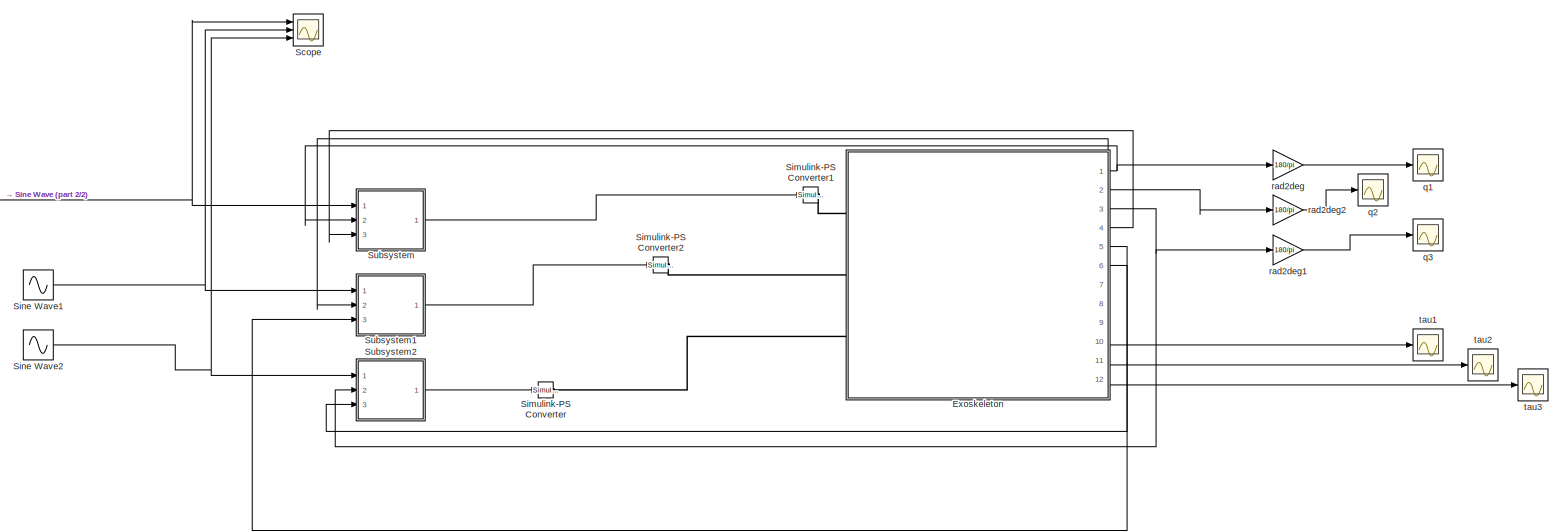
[diagram: root canvas - part 1/2, most of the canvas]
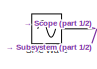
[diagram: root canvas - part 2/2, middle left region]
MODEL slx_8a791529891c
KIND model
CONFIG AbsTol = auto
CONFIG EnableMultiTasking = off
CONFIG FixedStep = auto
CONFIG MaxStep = auto
CONFIG MinStep = auto
CONFIG RelTol = 1e-3
CONFIG SampleTimeConstraint = Unconstrained
CONFIG SolverName = VariableStepAuto
CONFIG StartTime = 0.0
CONFIG StopTime = 10.0
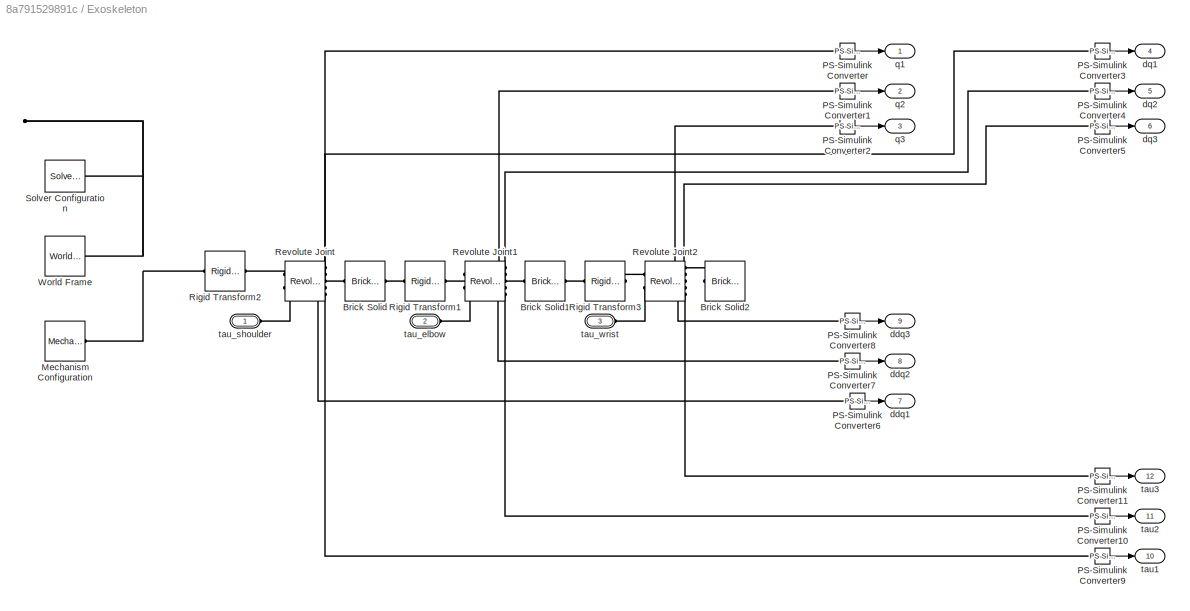
BLOCK [SubSystem] Exoskeleton
  Ports = [0, 12, 0, 0, 0, 3]
  RequestExecContextInheritance = off
BLOCK [Reference] Exoskeleton/Brick Solid  REF=sm_lib/Body Elements/Brick Solid
  Ports = [0, 0, 0, 0, 0, 1, 1]
  SourceBlock = sm_lib/Body Elements/Brick Solid
  SourceProductBaseCode = MS
  SourceType = Brick Solid
BLOCK [Reference] Exoskeleton/Brick Solid1  REF=sm_lib/Body Elements/Brick Solid
  Ports = [0, 0, 0, 0, 0, 1, 1]
  SourceBlock = sm_lib/Body Elements/Brick Solid
  SourceProductBaseCode = MS
  SourceType = Brick Solid
BLOCK [Reference] Exoskeleton/Brick Solid2  REF=sm_lib/Body Elements/Brick Solid
  Ports = [0, 0, 0, 0, 0, 1]
  SourceBlock = sm_lib/Body Elements/Brick Solid
  SourceProductBaseCode = MS
  SourceType = Brick Solid
BLOCK [Reference] Exoskeleton/Mechanism Configuration  REF=sm_lib/Utilities/Mechanism
Configuration
  Ports = [0, 0, 0, 0, 0, 0, 1]
  SourceBlock = sm_lib/Utilities/Mechanism\nConfiguration
  SourceProductBaseCode = MS
  SourceType = Mechanism\nConfiguration
BLOCK [Reference] Exoskeleton/PS-Simulink Converter  REF=nesl_utility/PS-Simulink
Converter
  Ports = [0, 1, 0, 0, 0, 1]
  SourceBlock = nesl_utility/PS-Simulink\nConverter
  SourceProductBaseCode = PW,SS
  SourceType = PS-Simulink\nConverter
BLOCK [Reference] Exoskeleton/PS-Simulink Converter1  REF=nesl_utility/PS-Simulink
Converter
  Ports = [0, 1, 0, 0, 0, 1]
  SourceBlock = nesl_utility/PS-Simulink\nConverter
  SourceProductBaseCode = PW,SS
  SourceType = PS-Simulink\nConverter
BLOCK [Reference] Exoskeleton/PS-Simulink Converter10  REF=nesl_utility/PS-Simulink
Converter
  Ports = [0, 1, 0, 0, 0, 1]
  SourceBlock = nesl_utility/PS-Simulink\nConverter
  SourceProductBaseCode = PW,SS
  SourceType = PS-Simulink\nConverter
BLOCK [Reference] Exoskeleton/PS-Simulink Converter11  REF=nesl_utility/PS-Simulink
Converter
  Ports = [0, 1, 0, 0, 0, 1]
  SourceBlock = nesl_utility/PS-Simulink\nConverter
  SourceProductBaseCode = PW,SS
  SourceType = PS-Simulink\nConverter
BLOCK [Reference] Exoskeleton/PS-Simulink Converter2  REF=nesl_utility/PS-Simulink
Converter
  Ports = [0, 1, 0, 0, 0, 1]
  SourceBlock = nesl_utility/PS-Simulink\nConverter
  SourceProductBaseCode = PW,SS
  SourceType = PS-Simulink\nConverter
BLOCK [Reference] Exoskeleton/PS-Simulink Converter3  REF=nesl_utility/PS-Simulink
Converter
  Ports = [0, 1, 0, 0, 0, 1]
  SourceBlock = nesl_utility/PS-Simulink\nConverter
  SourceProductBaseCode = PW,SS
  SourceType = PS-Simulink\nConverter
BLOCK [Reference] Exoskeleton/PS-Simulink Converter4  REF=nesl_utility/PS-Simulink
Converter
  Ports = [0, 1, 0, 0, 0, 1]
  SourceBlock = nesl_utility/PS-Simulink\nConverter
  SourceProductBaseCode = PW,SS
  SourceType = PS-Simulink\nConverter
BLOCK [Reference] Exoskeleton/PS-Simulink Converter5  REF=nesl_utility/PS-Simulink
Converter
  Ports = [0, 1, 0, 0, 0, 1]
  SourceBlock = nesl_utility/PS-Simulink\nConverter
  SourceProductBaseCode = PW,SS
  SourceType = PS-Simulink\nConverter
BLOCK [Reference] Exoskeleton/PS-Simulink Converter6  REF=nesl_utility/PS-Simulink
Converter
  Ports = [0, 1, 0, 0, 0, 1]
  SourceBlock = nesl_utility/PS-Simulink\nConverter
  SourceProductBaseCode = PW,SS
  SourceType = PS-Simulink\nConverter
BLOCK [Reference] Exoskeleton/PS-Simulink Converter7  REF=nesl_utility/PS-Simulink
Converter
  Ports = [0, 1, 0, 0, 0, 1]
  SourceBlock = nesl_utility/PS-Simulink\nConverter
  SourceProductBaseCode = PW,SS
  SourceType = PS-Simulink\nConverter
BLOCK [Reference] Exoskeleton/PS-Simulink Converter8  REF=nesl_utility/PS-Simulink
Converter
  Ports = [0, 1, 0, 0, 0, 1]
  SourceBlock = nesl_utility/PS-Simulink\nConverter
  SourceProductBaseCode = PW,SS
  SourceType = PS-Simulink\nConverter
BLOCK [Reference] Exoskeleton/PS-Simulink Converter9  REF=nesl_utility/PS-Simulink
Converter
  Ports = [0, 1, 0, 0, 0, 1]
  SourceBlock = nesl_utility/PS-Simulink\nConverter
  SourceProductBaseCode = PW,SS
  SourceType = PS-Simulink\nConverter
BLOCK [Reference] Exoskeleton/Revolute Joint  REF=sm_lib/Joints/Revolute Joint
  Ports = [0, 0, 0, 0, 0, 2, 5]
  SourceBlock = sm_lib/Joints/Revolute Joint
  SourceProductBaseCode = MS
  SourceType = Revolute Joint
BLOCK [Reference] Exoskeleton/Revolute Joint1  REF=sm_lib/Joints/Revolute Joint
  Ports = [0, 0, 0, 0, 0, 2, 5]
  SourceBlock = sm_lib/Joints/Revolute Joint
  SourceProductBaseCode = MS
  SourceType = Revolute Joint
BLOCK [Reference] Exoskeleton/Revolute Joint2  REF=sm_lib/Joints/Revolute Joint
  Ports = [0, 0, 0, 0, 0, 2, 5]
  SourceBlock = sm_lib/Joints/Revolute Joint
  SourceProductBaseCode = MS
  SourceType = Revolute Joint
BLOCK [Reference] Exoskeleton/Rigid Transform1  REF=sm_lib/Frames and
Transforms/Rigid
Transform
  Ports = [0, 0, 0, 0, 0, 1, 1]
  SourceBlock = sm_lib/Frames and\nTransforms/Rigid\nTransform
  SourceProductBaseCode = MS
  SourceType = Rigid\nTransform
BLOCK [Reference] Exoskeleton/Rigid Transform2  REF=sm_lib/Frames and
Transforms/Rigid
Transform
  Ports = [0, 0, 0, 0, 0, 1, 1]
  SourceBlock = sm_lib/Frames and\nTransforms/Rigid\nTransform
  SourceProductBaseCode = MS
  SourceType = Rigid\nTransform
BLOCK [Reference] Exoskeleton/Rigid Transform3  REF=sm_lib/Frames and
Transforms/Rigid
Transform
  Ports = [0, 0, 0, 0, 0, 1, 1]
  SourceBlock = sm_lib/Frames and\nTransforms/Rigid\nTransform
  SourceProductBaseCode = MS
  SourceType = Rigid\nTransform
BLOCK [Reference] Exoskeleton/Solver Configuration  REF=nesl_utility/Solver
Configuration
  Ports = [0, 0, 0, 0, 0, 0, 1]
  SourceBlock = nesl_utility/Solver\nConfiguration
  SourceProductBaseCode = PW,SS
  SourceType = Solver\nConfiguration
BLOCK [Reference] Exoskeleton/World Frame  REF=sm_lib/Frames and
Transforms/World Frame
  Ports = [0, 0, 0, 0, 0, 0, 1]
  SourceBlock = sm_lib/Frames and\nTransforms/World Frame
  SourceProductBaseCode = MS
  SourceType = World Frame
BLOCK [Outport] Exoskeleton/ddq1
  Port = 7
BLOCK [Outport] Exoskeleton/ddq2
  Port = 8
BLOCK [Outport] Exoskeleton/ddq3
  Port = 9
BLOCK [Outport] Exoskeleton/dq1
  Port = 4
BLOCK [Outport] Exoskeleton/dq2
  Port = 5
BLOCK [Outport] Exoskeleton/dq3
  Port = 6
BLOCK [Outport] Exoskeleton/q1
BLOCK [Outport] Exoskeleton/q2
  Port = 2
BLOCK [Outport] Exoskeleton/q3
  Port = 3
BLOCK [Outport] Exoskeleton/tau1
  Port = 10
BLOCK [Outport] Exoskeleton/tau2
  Port = 11
BLOCK [Outport] Exoskeleton/tau3	
  Port = 12
BLOCK [PMIOPort] Exoskeleton/tau_elbow
  Port = 2
  Side = Left
BLOCK [PMIOPort] Exoskeleton/tau_shoulder
  Side = Left
BLOCK [PMIOPort] Exoskeleton/tau_wrist
  Port = 3
  Side = Left
BLOCK [Scope] Scope
  Floating = off
  NumInputPorts = 3
  Ports = [3]
  ScopeSpecificationString = Simulink.scopes.TimeScopeBlockCfg('CurrentConfiguration', extmgr.ConfigurationSet(extmgr.Configuration('Core','General UI',true),extmgr.Configuration('Core','Source UI',true),extmgr.Configuration('Sources','WiredSimulink',true,'DataLoggingVariableName','ScopeData1'),extmgr.Configuration('Visuals','Time Domain',true,'SerializedDisplays',{struct('MinYLimReal','-60.09155','MaxYLimReal','90.82394','YL...<+1427ch>
BLOCK [Reference] Simulink-PS Converter  REF=nesl_utility/Simulink-PS
Converter
  Ports = [1, 0, 0, 0, 0, 0, 1]
  SourceBlock = nesl_utility/Simulink-PS\nConverter
  SourceProductBaseCode = PW,SS
  SourceType = Simulink-PS\nConverter
BLOCK [Reference] Simulink-PS Converter1  REF=nesl_utility/Simulink-PS
Converter
  Ports = [1, 0, 0, 0, 0, 0, 1]
  SourceBlock = nesl_utility/Simulink-PS\nConverter
  SourceProductBaseCode = PW,SS
  SourceType = Simulink-PS\nConverter
BLOCK [Reference] Simulink-PS Converter2  REF=nesl_utility/Simulink-PS
Converter
  Ports = [1, 0, 0, 0, 0, 0, 1]
  SourceBlock = nesl_utility/Simulink-PS\nConverter
  SourceProductBaseCode = PW,SS
  SourceType = Simulink-PS\nConverter
BLOCK [Sin] Sine Wave
  Amplitude = 90
  Frequency = 0.1
  Ports = [0, 1]
  SampleTime = 0
BLOCK [Sin] Sine Wave1
  Amplitude = 90
  Frequency = 0.1
  Ports = [0, 1]
  SampleTime = 0
BLOCK [Sin] Sine Wave2
  Amplitude = 90
  Bias = -45
  Frequency = 0.1
  Ports = [0, 1]
  SampleTime = 0
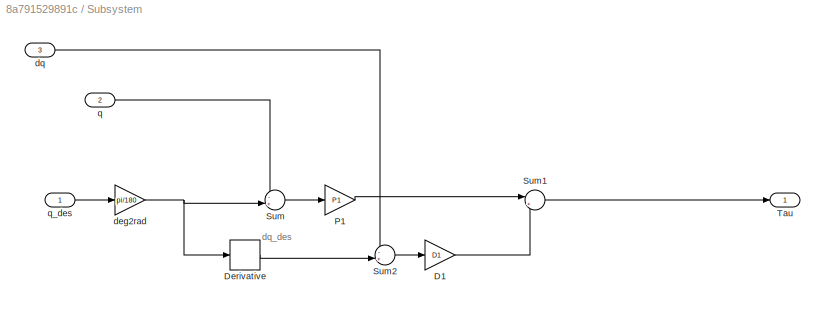
BLOCK [SubSystem] Subsystem
  Ports = [3, 1]
  RequestExecContextInheritance = off
BLOCK [Gain] Subsystem/D1
  Gain = D1
BLOCK [Derivative] Subsystem/Derivative
BLOCK [Gain] Subsystem/P1
  Gain = P1
BLOCK [Sum] Subsystem/Sum
  Inputs = -+|
  Ports = [2, 1]
BLOCK [Sum] Subsystem/Sum1
  Inputs = |++
  Ports = [2, 1]
BLOCK [Sum] Subsystem/Sum2
  Inputs = -+|
  Ports = [2, 1]
BLOCK [Outport] Subsystem/Tau
BLOCK [Gain] Subsystem/deg2rad
  Gain = pi/180
BLOCK [Inport] Subsystem/dq
  Port = 3
BLOCK [Inport] Subsystem/q
  Port = 2
BLOCK [Inport] Subsystem/q_des
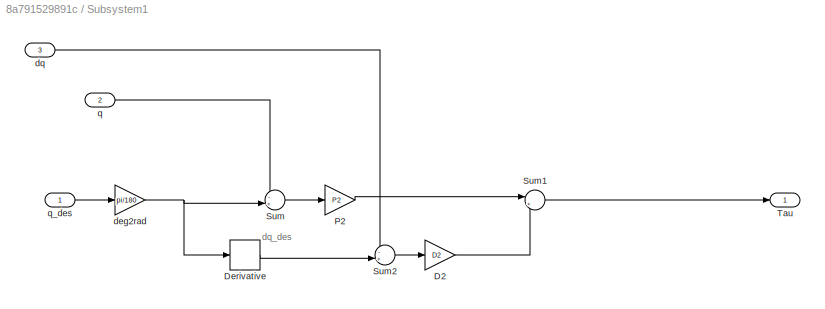
BLOCK [SubSystem] Subsystem1
  Ports = [3, 1]
  RequestExecContextInheritance = off
BLOCK [Gain] Subsystem1/D2
  Gain = D2
BLOCK [Derivative] Subsystem1/Derivative
BLOCK [Gain] Subsystem1/P2
  Gain = P2
BLOCK [Sum] Subsystem1/Sum
  Inputs = -+|
  Ports = [2, 1]
BLOCK [Sum] Subsystem1/Sum1
  Inputs = |++
  Ports = [2, 1]
BLOCK [Sum] Subsystem1/Sum2
  Inputs = -+|
  Ports = [2, 1]
BLOCK [Outport] Subsystem1/Tau
BLOCK [Gain] Subsystem1/deg2rad
  Gain = pi/180
BLOCK [Inport] Subsystem1/dq
  Port = 3
BLOCK [Inport] Subsystem1/q
  Port = 2
BLOCK [Inport] Subsystem1/q_des
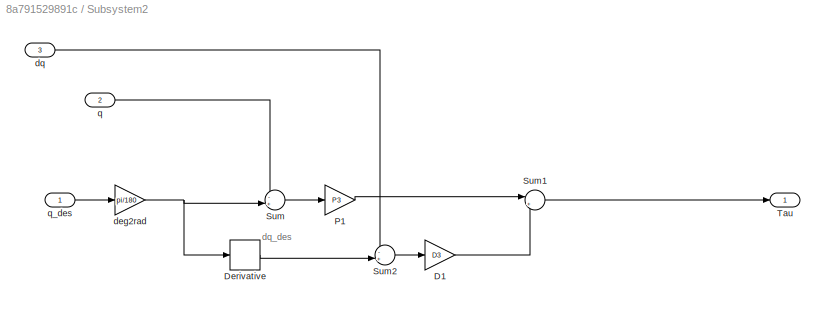
BLOCK [SubSystem] Subsystem2
  Ports = [3, 1]
  RequestExecContextInheritance = off
BLOCK [Gain] Subsystem2/D1
  Gain = D3
BLOCK [Derivative] Subsystem2/Derivative
BLOCK [Gain] Subsystem2/P1
  Gain = P3
BLOCK [Sum] Subsystem2/Sum
  Inputs = -+|
  Ports = [2, 1]
BLOCK [Sum] Subsystem2/Sum1
  Inputs = |++
  Ports = [2, 1]
BLOCK [Sum] Subsystem2/Sum2
  Inputs = -+|
  Ports = [2, 1]
BLOCK [Outport] Subsystem2/Tau
BLOCK [Gain] Subsystem2/deg2rad
  Gain = pi/180
BLOCK [Inport] Subsystem2/dq
  Port = 3
BLOCK [Inport] Subsystem2/q
  Port = 2
BLOCK [Inport] Subsystem2/q_des
BLOCK [Scope] q1
  Floating = off
  NumInputPorts = 1
  Ports = [1]
  ScopeSpecificationString = Simulink.scopes.TimeScopeBlockCfg('CurrentConfiguration', extmgr.ConfigurationSet(extmgr.Configuration('Core','General UI',true),extmgr.Configuration('Core','Source UI',true),extmgr.Configuration('Sources','WiredSimulink',true),extmgr.Configuration('Visuals','Time Domain',true,'SerializedDisplays',{struct('MinYLimReal','-2.9163','MaxYLimReal','1.79191','YLabelReal','','MinYLimMag','0.00000','MaxYL...<+1415ch>
BLOCK [Scope] q2
  Floating = off
  NumInputPorts = 1
  Ports = [1]
  ScopeSpecificationString = Simulink.scopes.TimeScopeBlockCfg('CurrentConfiguration', extmgr.ConfigurationSet(extmgr.Configuration('Core','General UI',true),extmgr.Configuration('Core','Source UI',true),extmgr.Configuration('Sources','WiredSimulink',true,'DataLoggingVariableName','ScopeData3'),extmgr.Configuration('Visuals','Time Domain',true,'SerializedDisplays',{struct('MinYLimReal','-9.45562','MaxYLimReal','85.10058','YLa...<+1423ch>
BLOCK [Scope] q3
  Floating = off
  NumInputPorts = 1
  Ports = [1]
  ScopeSpecificationString = Simulink.scopes.TimeScopeBlockCfg('CurrentConfiguration', extmgr.ConfigurationSet(extmgr.Configuration('Core','General UI',true),extmgr.Configuration('Core','Source UI',true),extmgr.Configuration('Sources','WiredSimulink',true,'DataLoggingVariableName','ScopeData2'),extmgr.Configuration('Visuals','Time Domain',true,'SerializedDisplays',{struct('MinYLimReal','-51.15623','MaxYLimReal','39.83269','YL...<+1421ch>
BLOCK [Gain] rad2deg
  Gain = 180/pi
BLOCK [Gain] rad2deg1
  Gain = 180/pi
BLOCK [Gain] rad2deg2
  Gain = 180/pi
BLOCK [Scope] tau1
  Floating = off
  NumInputPorts = 1
  Ports = [1]
  ScopeSpecificationString = Simulink.scopes.TimeScopeBlockCfg('CurrentConfiguration', extmgr.ConfigurationSet(extmgr.Configuration('Core','General UI',true),extmgr.Configuration('Core','Source UI',true),extmgr.Configuration('Sources','WiredSimulink',true,'DataLoggingVariableName','ScopeData1'),extmgr.Configuration('Visuals','Time Domain',true,'SerializedDisplays',{struct('MinYLimReal','-0.66495','MaxYLimReal','5.98458','YLab...<+1421ch>
BLOCK [Scope] tau2
  Floating = off
  NumInputPorts = 1
  Ports = [1]
  ScopeSpecificationString = Simulink.scopes.TimeScopeBlockCfg('CurrentConfiguration', extmgr.ConfigurationSet(extmgr.Configuration('Core','General UI',true),extmgr.Configuration('Core','Source UI',true),extmgr.Configuration('Sources','WiredSimulink',true,'DataLoggingVariableName','ScopeData4'),extmgr.Configuration('Visuals','Time Domain',true,'SerializedDisplays',{struct('MinYLimReal','-0.58905','MaxYLimReal','5.30144','YLab...<+1421ch>
BLOCK [Scope] tau3
  Floating = off
  NumInputPorts = 1
  Ports = [1]
  ScopeSpecificationString = Simulink.scopes.TimeScopeBlockCfg('CurrentConfiguration', extmgr.ConfigurationSet(extmgr.Configuration('Core','General UI',true),extmgr.Configuration('Core','Source UI',true),extmgr.Configuration('Sources','WiredSimulink',true,'DataLoggingVariableName','ScopeData5'),extmgr.Configuration('Visuals','Time Domain',true,'SerializedDisplays',{struct('MinYLimReal','-441.82574','MaxYLimReal','49.44085','Y...<+1458ch>
ANNOTATION Subsystem: dq_des
ANNOTATION Subsystem1: dq_des
ANNOTATION Subsystem2: dq_des
LINE Exoskeleton/PS-Simulink Converter10:1 -> Exoskeleton/tau2:1
LINE Exoskeleton/PS-Simulink Converter11:1 -> Exoskeleton/tau3	:1
LINE Exoskeleton/PS-Simulink Converter1:1 -> Exoskeleton/q2:1
LINE Exoskeleton/PS-Simulink Converter2:1 -> Exoskeleton/q3:1
LINE Exoskeleton/PS-Simulink Converter3:1 -> Exoskeleton/dq1:1
LINE Exoskeleton/PS-Simulink Converter4:1 -> Exoskeleton/dq2:1
LINE Exoskeleton/PS-Simulink Converter5:1 -> Exoskeleton/dq3:1
LINE Exoskeleton/PS-Simulink Converter6:1 -> Exoskeleton/ddq1:1
LINE Exoskeleton/PS-Simulink Converter7:1 -> Exoskeleton/ddq2:1
LINE Exoskeleton/PS-Simulink Converter8:1 -> Exoskeleton/ddq3:1
LINE Exoskeleton/PS-Simulink Converter9:1 -> Exoskeleton/tau1:1
LINE Exoskeleton/PS-Simulink Converter:1 -> Exoskeleton/q1:1
NET Exoskeleton:1 -> Subsystem:2, rad2deg:1
LINE Exoskeleton:10 -> tau1:1
LINE Exoskeleton:11 -> tau2:1
LINE Exoskeleton:12 -> tau3:1
NET Exoskeleton:2 -> Subsystem1:2, rad2deg2:1
NET Exoskeleton:3 -> Subsystem2:2, rad2deg1:1
LINE Exoskeleton:4 -> Subsystem:3
LINE Exoskeleton:5 -> Subsystem1:3
LINE Exoskeleton:6 -> Subsystem2:3
NET Sine Wave1:1 -> Scope:2, Subsystem1:1
NET Sine Wave2:1 -> Scope:3, Subsystem2:1
NET Sine Wave:1 -> Scope:1, Subsystem:1
LINE Subsystem/D1:1 -> Subsystem/Sum1:2
LINE Subsystem/Derivative:1 -> Subsystem/Sum2:2
LINE Subsystem/P1:1 -> Subsystem/Sum1:1
LINE Subsystem/Sum1:1 -> Subsystem/Tau:1
LINE Subsystem/Sum2:1 -> Subsystem/D1:1
LINE Subsystem/Sum:1 -> Subsystem/P1:1
NET Subsystem/deg2rad:1 -> Subsystem/Derivative:1, Subsystem/Sum:2
LINE Subsystem/dq:1 -> Subsystem/Sum2:1
LINE Subsystem/q:1 -> Subsystem/Sum:1
LINE Subsystem/q_des:1 -> Subsystem/deg2rad:1
LINE Subsystem1/D2:1 -> Subsystem1/Sum1:2
LINE Subsystem1/Derivative:1 -> Subsystem1/Sum2:2
LINE Subsystem1/P2:1 -> Subsystem1/Sum1:1
LINE Subsystem1/Sum1:1 -> Subsystem1/Tau:1
LINE Subsystem1/Sum2:1 -> Subsystem1/D2:1
LINE Subsystem1/Sum:1 -> Subsystem1/P2:1
NET Subsystem1/deg2rad:1 -> Subsystem1/Derivative:1, Subsystem1/Sum:2
LINE Subsystem1/dq:1 -> Subsystem1/Sum2:1
LINE Subsystem1/q:1 -> Subsystem1/Sum:1
LINE Subsystem1/q_des:1 -> Subsystem1/deg2rad:1
LINE Subsystem1:1 -> Simulink-PS Converter2:1
LINE Subsystem2/D1:1 -> Subsystem2/Sum1:2
LINE Subsystem2/Derivative:1 -> Subsystem2/Sum2:2
LINE Subsystem2/P1:1 -> Subsystem2/Sum1:1
LINE Subsystem2/Sum1:1 -> Subsystem2/Tau:1
LINE Subsystem2/Sum2:1 -> Subsystem2/D1:1
LINE Subsystem2/Sum:1 -> Subsystem2/P1:1
NET Subsystem2/deg2rad:1 -> Subsystem2/Derivative:1, Subsystem2/Sum:2
LINE Subsystem2/dq:1 -> Subsystem2/Sum2:1
LINE Subsystem2/q:1 -> Subsystem2/Sum:1
LINE Subsystem2/q_des:1 -> Subsystem2/deg2rad:1
LINE Subsystem2:1 -> Simulink-PS Converter:1
LINE Subsystem:1 -> Simulink-PS Converter1:1
LINE rad2deg1:1 -> q3:1
LINE rad2deg2:1 -> q2:1
LINE rad2deg:1 -> q1:1
PLINE Exoskeleton/Brick Solid1:LConn1 -- Exoskeleton/Revolute Joint1:RConn1
PLINE Exoskeleton/Brick Solid1:RConn1 -- Exoskeleton/Rigid Transform3:LConn1
PLINE Exoskeleton/Brick Solid2:LConn1 -- Exoskeleton/Revolute Joint2:RConn1
PLINE Exoskeleton/Brick Solid:LConn1 -- Exoskeleton/Revolute Joint:RConn1
PLINE Exoskeleton/Brick Solid:RConn1 -- Exoskeleton/Rigid Transform1:LConn1
PNET net1: Exoskeleton/Mechanism Configuration:RConn1 -- Exoskeleton/Rigid Transform2:LConn1 -- Exoskeleton/Solver Configuration:RConn1 -- Exoskeleton/World Frame:RConn1
PLINE Exoskeleton/PS-Simulink Converter10:LConn1 -- Exoskeleton/Revolute Joint1:RConn5
PLINE Exoskeleton/PS-Simulink Converter11:LConn1 -- Exoskeleton/Revolute Joint2:RConn5
PLINE Exoskeleton/PS-Simulink Converter1:LConn1 -- Exoskeleton/Revolute Joint1:RConn2
PLINE Exoskeleton/PS-Simulink Converter2:LConn1 -- Exoskeleton/Revolute Joint2:RConn2
PLINE Exoskeleton/PS-Simulink Converter3:LConn1 -- Exoskeleton/Revolute Joint:RConn3
PLINE Exoskeleton/PS-Simulink Converter4:LConn1 -- Exoskeleton/Revolute Joint1:RConn3
PLINE Exoskeleton/PS-Simulink Converter5:LConn1 -- Exoskeleton/Revolute Joint2:RConn3
PLINE Exoskeleton/PS-Simulink Converter6:LConn1 -- Exoskeleton/Revolute Joint:RConn4
PLINE Exoskeleton/PS-Simulink Converter7:LConn1 -- Exoskeleton/Revolute Joint1:RConn4
PLINE Exoskeleton/PS-Simulink Converter8:LConn1 -- Exoskeleton/Revolute Joint2:RConn4
PLINE Exoskeleton/PS-Simulink Converter9:LConn1 -- Exoskeleton/Revolute Joint:RConn5
PLINE Exoskeleton/PS-Simulink Converter:LConn1 -- Exoskeleton/Revolute Joint:RConn2
PLINE Exoskeleton/Revolute Joint1:LConn1 -- Exoskeleton/Rigid Transform1:RConn1
PLINE Exoskeleton/Revolute Joint1:LConn2 -- Exoskeleton/tau_elbow:RConn1
PLINE Exoskeleton/Revolute Joint2:LConn1 -- Exoskeleton/Rigid Transform3:RConn1
PLINE Exoskeleton/Revolute Joint2:LConn2 -- Exoskeleton/tau_wrist:RConn1
PLINE Exoskeleton/Revolute Joint:LConn1 -- Exoskeleton/Rigid Transform2:RConn1
PLINE Exoskeleton/Revolute Joint:LConn2 -- Exoskeleton/tau_shoulder:RConn1
PLINE Exoskeleton:LConn1 -- Simulink-PS Converter1:RConn1
PLINE Exoskeleton:LConn2 -- Simulink-PS Converter2:RConn1
PLINE Exoskeleton:LConn3 -- Simulink-PS Converter:RConn1
note: NET lines group one-source signal fan-out (src -> all destinations, sorted); 1:1 wires keep LINE; PNET lines group multi-terminal physical nets as a canonical sorted terminal list (undirected conserving connections); 2-terminal nets keep the pairwise PLINE form
